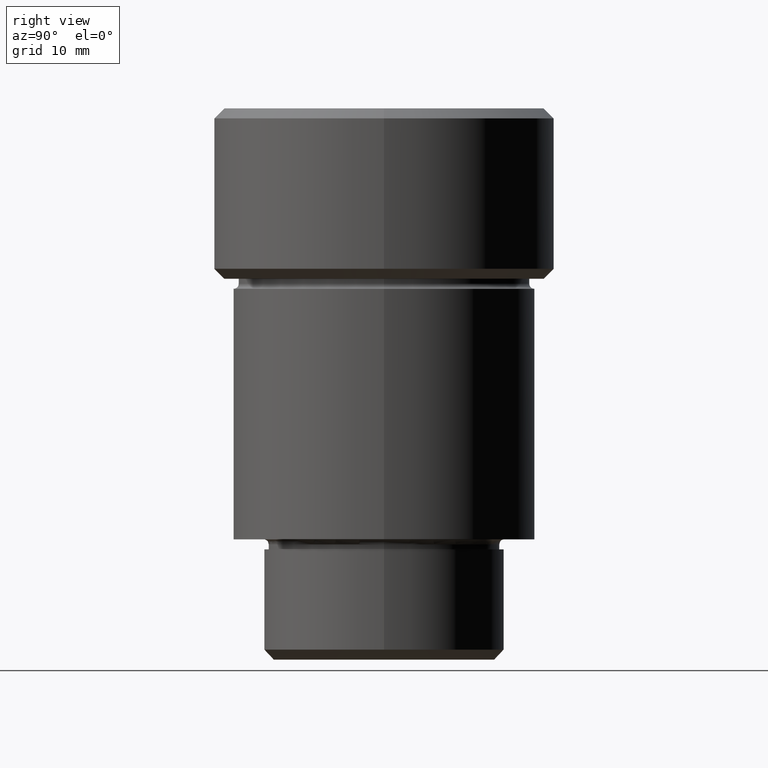
[diagram: clean part render]
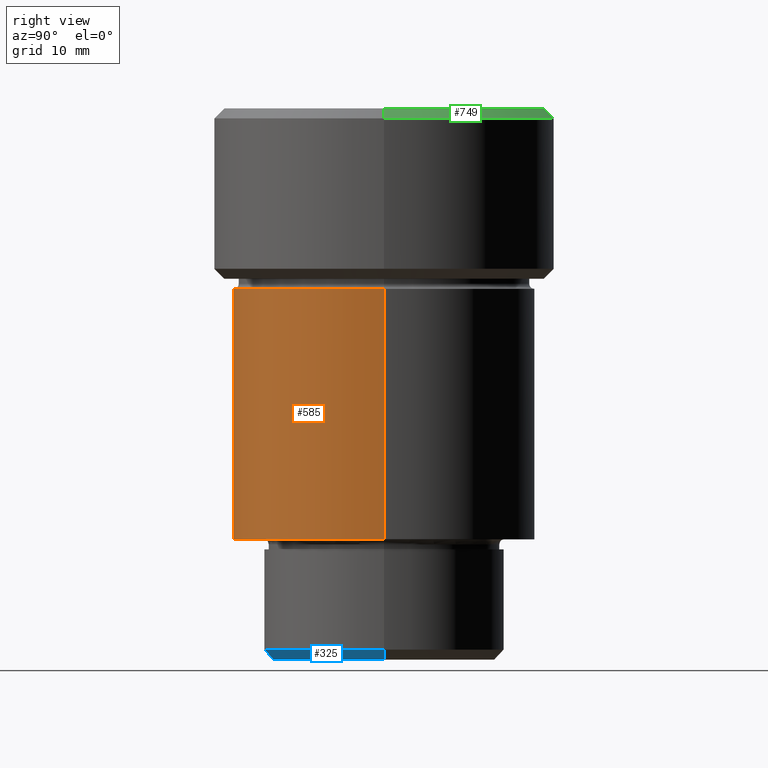
[diagram: same view with three faces highlighted in distinct colors, each labeled with its STEP entity id]
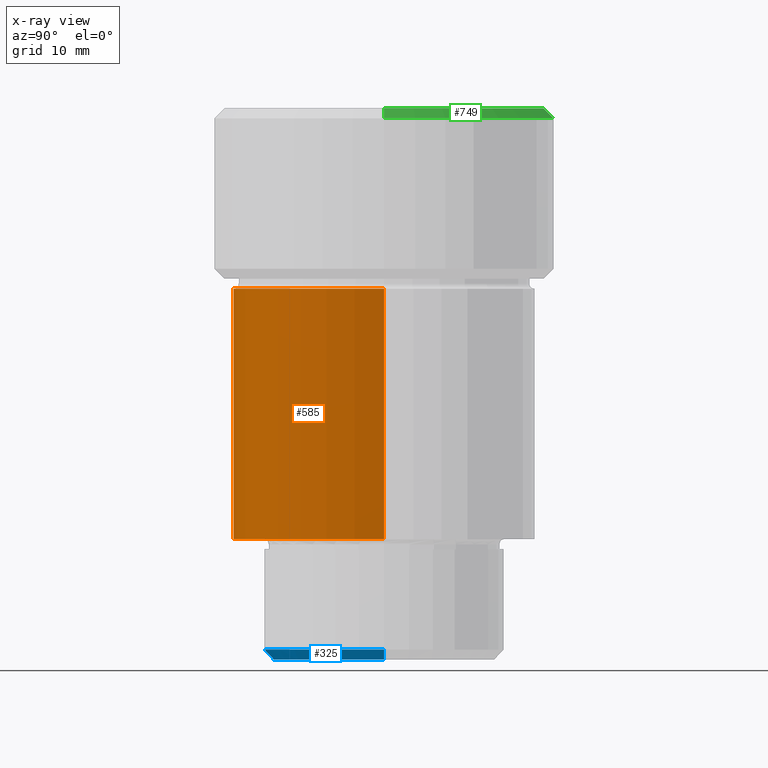
[diagram: x-ray of the same camera — body ghosted, the three highlighted faces saturated]
A machine part, right view with three faces highlighted in distinct colors.
The next image is the same camera in x-ray (body ghosted, the three faces saturated) — at least one of them is partly hidden behind the body in this view.
Their STEP definitions:

[orange] entity #585 — the highlighted cylindrical surface (partial cylindrical patch) has radius 15 mm, axis along (-0, -0, 1).
#12 = ORIENTED_EDGE ( 'NONE', *, *, #301, .F. ) ;
#14 = CARTESIAN_POINT ( 'NONE',  ( -15.00000000000000178, 1.836970198721029983E-15, 0.000000000000000000 ) ) ;
#100 = ORIENTED_EDGE ( 'NONE', *, *, #297, .T. ) ;
#117 = CARTESIAN_POINT ( 'NONE',  ( 0.000000000000000000, 0.000000000000000000, -43.00000000000000000 ) ) ;
#120 = VECTOR ( 'NONE', #563, 1000.000000000000000 ) ;
#127 = DIRECTION ( 'NONE',  ( 1.000000000000000000, 0.000000000000000000, 0.000000000000000000 ) ) ;
#142 = LINE ( 'NONE', #260, #120 ) ;
#182 = DIRECTION ( 'NONE',  ( -0.000000000000000000, -0.000000000000000000, 1.000000000000000000 ) ) ;
#250 = CARTESIAN_POINT ( 'NONE',  ( 0.000000000000000000, 0.000000000000000000, 0.000000000000000000 ) ) ;
#260 = CARTESIAN_POINT ( 'NONE',  ( 15.00000000000000178, 0.000000000000000000, 0.000000000000000000 ) ) ;
#297 = EDGE_CURVE ( 'NONE', #305, #322, #369, .T. ) ;
#299 = CARTESIAN_POINT ( 'NONE',  ( -15.00000000000000533, 1.836970198721030378E-15, -43.00000000000000000 ) ) ;
#301 = EDGE_CURVE ( 'NONE', #419, #362, #484, .T. ) ;
#305 = VERTEX_POINT ( 'NONE', #299 ) ;
#322 = VERTEX_POINT ( 'NONE', #606 ) ;
#334 = AXIS2_PLACEMENT_3D ( 'NONE', #364, #610, #601 ) ;
#338 = EDGE_LOOP ( 'NONE', ( #432, #100, #344, #12 ) ) ;
#344 = ORIENTED_EDGE ( 'NONE', *, *, #528, .T. ) ;
#362 = VERTEX_POINT ( 'NONE', #790 ) ;
#363 = CARTESIAN_POINT ( 'NONE',  ( -15.00000000000000000, 1.836970198721029983E-15, -18.00000000000000000 ) ) ;
#364 = CARTESIAN_POINT ( 'NONE',  ( 0.000000000000000000, 0.000000000000000000, -18.00000000000000000 ) ) ;
#369 = CIRCLE ( 'NONE', #468, 15.00000000000000355 ) ;
#419 = VERTEX_POINT ( 'NONE', #363 ) ;
#432 = ORIENTED_EDGE ( 'NONE', *, *, #444, .F. ) ;
#444 = EDGE_CURVE ( 'NONE', #305, #419, #495, .T. ) ;
#468 = AXIS2_PLACEMENT_3D ( 'NONE', #117, #182, #127 ) ;
#470 = VECTOR ( 'NONE', #489, 1000.000000000000000 ) ;
#484 = CIRCLE ( 'NONE', #334, 15.00000000000000000 ) ;
#489 = DIRECTION ( 'NONE',  ( -0.000000000000000000, -0.000000000000000000, 1.000000000000000000 ) ) ;
#495 = LINE ( 'NONE', #14, #470 ) ;
#528 = EDGE_CURVE ( 'NONE', #322, #362, #142, .T. ) ;
#558 = CYLINDRICAL_SURFACE ( 'NONE', #686, 15.00000000000000178 ) ;
#563 = DIRECTION ( 'NONE',  ( -0.000000000000000000, -0.000000000000000000, 1.000000000000000000 ) ) ;
#585 = ADVANCED_FACE ( 'NONE', ( #734 ), #558, .T. ) ;
#601 = DIRECTION ( 'NONE',  ( 1.000000000000000000, 0.000000000000000000, 0.000000000000000000 ) ) ;
#606 = CARTESIAN_POINT ( 'NONE',  ( 15.00000000000000355, 0.000000000000000000, -43.00000000000000000 ) ) ;
#610 = DIRECTION ( 'NONE',  ( -0.000000000000000000, -0.000000000000000000, 1.000000000000000000 ) ) ;
#661 = DIRECTION ( 'NONE',  ( -0.000000000000000000, -0.000000000000000000, 1.000000000000000000 ) ) ;
#666 = DIRECTION ( 'NONE',  ( 1.000000000000000000, 0.000000000000000000, 0.000000000000000000 ) ) ;
#686 = AXIS2_PLACEMENT_3D ( 'NONE', #250, #661, #666 ) ;
#734 = FACE_OUTER_BOUND ( 'NONE', #338, .T. ) ;
#790 = CARTESIAN_POINT ( 'NONE',  ( 15.00000000000000000, 0.000000000000000000, -18.00000000000000000 ) ) ;

[blue] entity #325 — the highlighted conical surface has half-angle 45 deg.
#23 = ORIENTED_EDGE ( 'NONE', *, *, #136, .T. ) ;
#26 = CARTESIAN_POINT ( 'NONE',  ( 12.00000000000000355, 0.000000000000000000, -54.00000000000001421 ) ) ;
#27 = CARTESIAN_POINT ( 'NONE',  ( -12.00000000000000355, 1.469576158976824342E-15, -54.00000000000001421 ) ) ;
#43 = CIRCLE ( 'NONE', #613, 12.00000000000000355 ) ;
#45 = CARTESIAN_POINT ( 'NONE',  ( 0.000000000000000000, 0.000000000000000000, -54.00000000000001421 ) ) ;
#47 = DIRECTION ( 'NONE',  ( 0.7071067811865524577, 0.000000000000000000, 0.7071067811865426878 ) ) ;
#65 = FACE_OUTER_BOUND ( 'NONE', #309, .T. ) ;
#70 = DIRECTION ( 'NONE',  ( -1.000000000000000000, 0.000000000000000000, 0.000000000000000000 ) ) ;
#81 = ORIENTED_EDGE ( 'NONE', *, *, #216, .F. ) ;
#104 = DIRECTION ( 'NONE',  ( -1.000000000000000000, 0.000000000000000000, 0.000000000000000000 ) ) ;
#136 = EDGE_CURVE ( 'NONE', #632, #664, #649, .T. ) ;
#144 = CONICAL_SURFACE ( 'NONE', #589, 12.00000000000000355, 0.7853981633974552734 ) ;
#162 = CARTESIAN_POINT ( 'NONE',  ( -12.00000000000000355, 1.469576158976824342E-15, -54.00000000000001421 ) ) ;
#178 = VERTEX_POINT ( 'NONE', #162 ) ;
#208 = DIRECTION ( 'NONE',  ( -0.7071067811865524577, 8.659560562354993255E-17, 0.7071067811865426878 ) ) ;
#216 = EDGE_CURVE ( 'NONE', #178, #664, #43, .T. ) ;
#302 = VERTEX_POINT ( 'NONE', #353 ) ;
#309 = EDGE_LOOP ( 'NONE', ( #626, #793, #23, #81 ) ) ;
#325 = ADVANCED_FACE ( 'NONE', ( #65 ), #144, .T. ) ;
#347 = DIRECTION ( 'NONE',  ( -0.000000000000000000, -0.000000000000000000, 1.000000000000000000 ) ) ;
#353 = CARTESIAN_POINT ( 'NONE',  ( -11.00000000000001066, 1.408343819019456965E-15, -54.99999999999999289 ) ) ;
#357 = VECTOR ( 'NONE', #208, 1000.000000000000000 ) ;
#367 = CARTESIAN_POINT ( 'NONE',  ( 11.00000000000001066, 0.000000000000000000, -54.99999999999999289 ) ) ;
#415 = EDGE_CURVE ( 'NONE', #632, #302, #644, .T. ) ;
#445 = VECTOR ( 'NONE', #47, 1000.000000000000000 ) ;
#525 = EDGE_CURVE ( 'NONE', #302, #178, #752, .T. ) ;
#527 = DIRECTION ( 'NONE',  ( -0.000000000000000000, -0.000000000000000000, 1.000000000000000000 ) ) ;
#555 = DIRECTION ( 'NONE',  ( 0.000000000000000000, 0.000000000000000000, -1.000000000000000000 ) ) ;
#589 = AXIS2_PLACEMENT_3D ( 'NONE', #45, #527, #597 ) ;
#597 = DIRECTION ( 'NONE',  ( 1.000000000000000000, 0.000000000000000000, 0.000000000000000000 ) ) ;
#613 = AXIS2_PLACEMENT_3D ( 'NONE', #653, #347, #104 ) ;
#626 = ORIENTED_EDGE ( 'NONE', *, *, #525, .F. ) ;
#632 = VERTEX_POINT ( 'NONE', #367 ) ;
#644 = CIRCLE ( 'NONE', #785, 11.00000000000001066 ) ;
#649 = LINE ( 'NONE', #704, #445 ) ;
#653 = CARTESIAN_POINT ( 'NONE',  ( 0.000000000000000000, 0.000000000000000000, -54.00000000000001421 ) ) ;
#664 = VERTEX_POINT ( 'NONE', #26 ) ;
#665 = CARTESIAN_POINT ( 'NONE',  ( 0.000000000000000000, 0.000000000000000000, -54.99999999999999289 ) ) ;
#704 = CARTESIAN_POINT ( 'NONE',  ( 12.00000000000000355, 0.000000000000000000, -54.00000000000001421 ) ) ;
#752 = LINE ( 'NONE', #27, #357 ) ;
#785 = AXIS2_PLACEMENT_3D ( 'NONE', #665, #555, #70 ) ;
#793 = ORIENTED_EDGE ( 'NONE', *, *, #415, .F. ) ;

[green] entity #749 — the highlighted conical surface has half-angle 45 deg.
#9 = LINE ( 'NONE', #617, #44 ) ;
#40 = EDGE_LOOP ( 'NONE', ( #647, #237, #119, #578 ) ) ;
#44 = VECTOR ( 'NONE', #551, 1000.000000000000000 ) ;
#68 = DIRECTION ( 'NONE',  ( -0.000000000000000000, -0.000000000000000000, 1.000000000000000000 ) ) ;
#86 = VERTEX_POINT ( 'NONE', #616 ) ;
#119 = ORIENTED_EDGE ( 'NONE', *, *, #467, .F. ) ;
#121 = AXIS2_PLACEMENT_3D ( 'NONE', #422, #123, #273 ) ;
#123 = DIRECTION ( 'NONE',  ( 0.000000000000000000, 0.000000000000000000, -1.000000000000000000 ) ) ;
#128 = VERTEX_POINT ( 'NONE', #285 ) ;
#192 = CIRCLE ( 'NONE', #562, 15.99999999999999289 ) ;
#237 = ORIENTED_EDGE ( 'NONE', *, *, #389, .T. ) ;
#255 = DIRECTION ( 'NONE',  ( 0.000000000000000000, 0.000000000000000000, -1.000000000000000000 ) ) ;
#268 = VERTEX_POINT ( 'NONE', #706 ) ;
#273 = DIRECTION ( 'NONE',  ( -1.000000000000000000, 0.000000000000000000, 0.000000000000000000 ) ) ;
#285 = CARTESIAN_POINT ( 'NONE',  ( -17.00000000000000000, 2.081899558550500280E-15, -1.000000000000011324 ) ) ;
#311 = CIRCLE ( 'NONE', #401, 17.00000000000000000 ) ;
#337 = LINE ( 'NONE', #582, #590 ) ;
#386 = CONICAL_SURFACE ( 'NONE', #121, 15.99999999999999289, 0.7853981633974466137 ) ;
#389 = EDGE_CURVE ( 'NONE', #86, #268, #9, .T. ) ;
#401 = AXIS2_PLACEMENT_3D ( 'NONE', #731, #255, #504 ) ;
#422 = CARTESIAN_POINT ( 'NONE',  ( 0.000000000000000000, 0.000000000000000000, 0.000000000000000000 ) ) ;
#433 = DIRECTION ( 'NONE',  ( 1.000000000000000000, 0.000000000000000000, 0.000000000000000000 ) ) ;
#467 = EDGE_CURVE ( 'NONE', #128, #268, #311, .T. ) ;
#500 = DIRECTION ( 'NONE',  ( -0.7071067811865463515, 0.000000000000000000, -0.7071067811865487940 ) ) ;
#504 = DIRECTION ( 'NONE',  ( 1.000000000000000000, 0.000000000000000000, 0.000000000000000000 ) ) ;
#546 = CARTESIAN_POINT ( 'NONE',  ( 0.000000000000000000, 0.000000000000000000, 0.000000000000000000 ) ) ;
#551 = DIRECTION ( 'NONE',  ( 0.7071067811865463515, 8.659560562354919300E-17, -0.7071067811865487940 ) ) ;
#562 = AXIS2_PLACEMENT_3D ( 'NONE', #546, #68, #433 ) ;
#578 = ORIENTED_EDGE ( 'NONE', *, *, #700, .F. ) ;
#582 = CARTESIAN_POINT ( 'NONE',  ( -15.99999999999999289, 0.000000000000000000, 0.000000000000000000 ) ) ;
#590 = VECTOR ( 'NONE', #500, 1000.000000000000000 ) ;
#594 = EDGE_CURVE ( 'NONE', #86, #637, #192, .T. ) ;
#616 = CARTESIAN_POINT ( 'NONE',  ( 15.99999999999999289, 2.020667218593132311E-15, 0.000000000000000000 ) ) ;
#617 = CARTESIAN_POINT ( 'NONE',  ( 15.99999999999999289, 1.959434878635764343E-15, 0.000000000000000000 ) ) ;
#637 = VERTEX_POINT ( 'NONE', #654 ) ;
#647 = ORIENTED_EDGE ( 'NONE', *, *, #594, .F. ) ;
#654 = CARTESIAN_POINT ( 'NONE',  ( -15.99999999999999289, 0.000000000000000000, 0.000000000000000000 ) ) ;
#700 = EDGE_CURVE ( 'NONE', #637, #128, #337, .T. ) ;
#706 = CARTESIAN_POINT ( 'NONE',  ( 17.00000000000000000, 0.000000000000000000, -1.000000000000011324 ) ) ;
#721 = FACE_OUTER_BOUND ( 'NONE', #40, .T. ) ;
#731 = CARTESIAN_POINT ( 'NONE',  ( 0.000000000000000000, 0.000000000000000000, -1.000000000000011324 ) ) ;
#749 = ADVANCED_FACE ( 'NONE', ( #721 ), #386, .T. ) ;